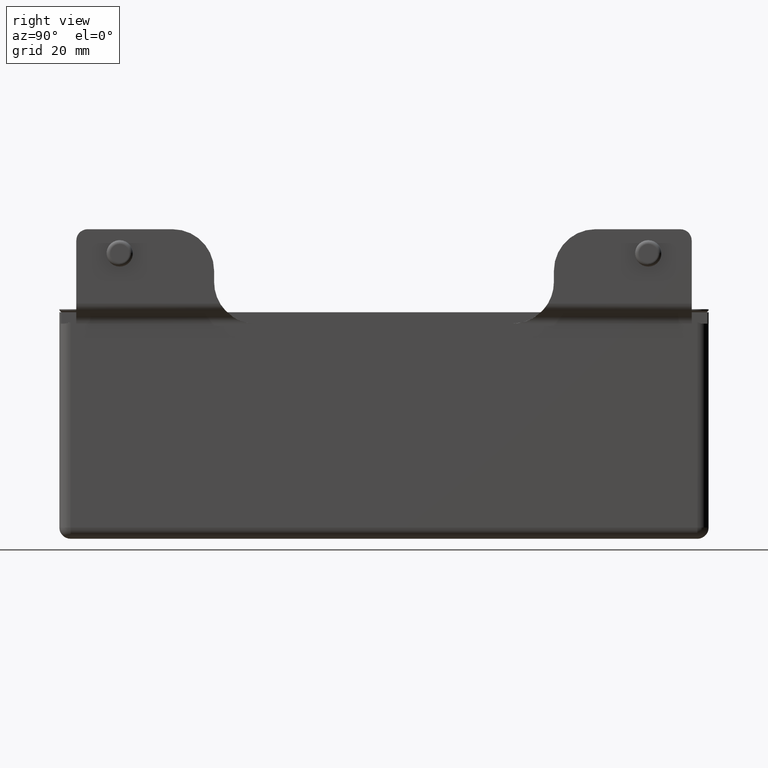
[diagram: clean part render]
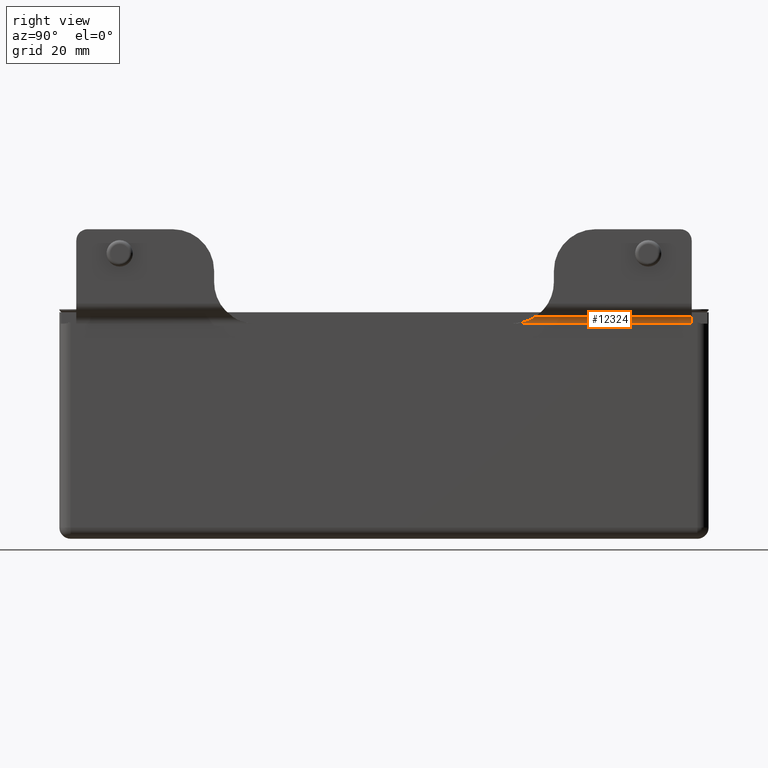
[diagram: same view with one face highlighted and labeled with its STEP entity id]
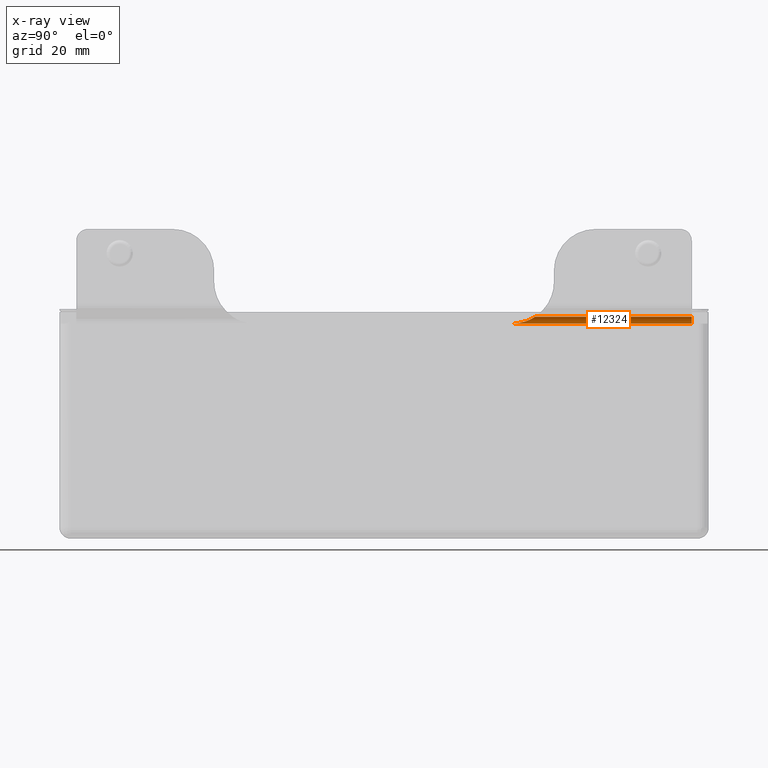
[diagram: x-ray of the same camera — body ghosted, the highlighted face saturated]
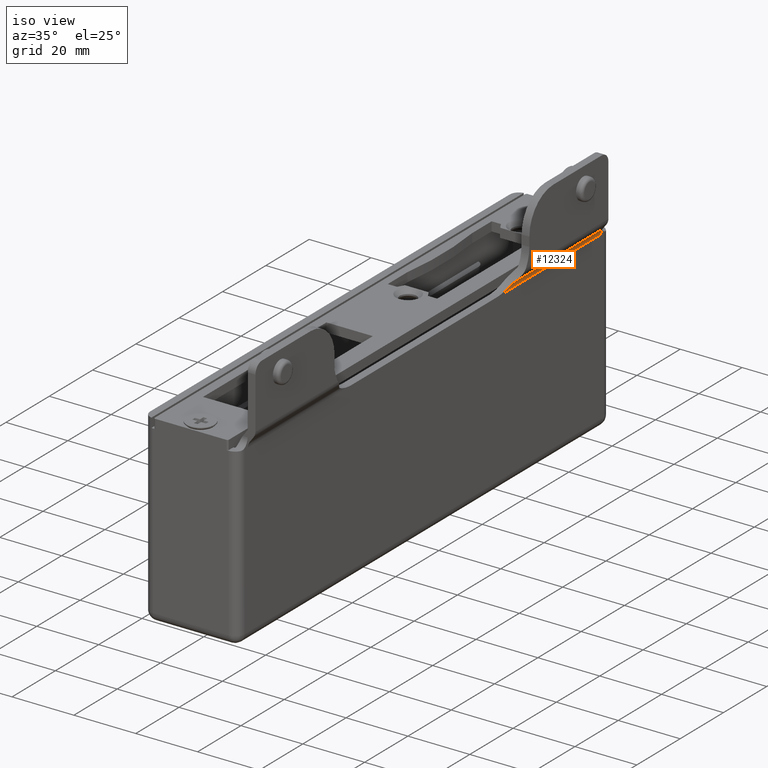
[diagram: same view with one face highlighted and labeled with its STEP entity id]
A machine part, right view. The second image highlights one B-rep face of the part: STEP entity #12324.
The next image is the same camera in x-ray: the body ghosted, the highlighted face saturated — about 0% of this face is hidden behind the body in this view.
A second angle (iso view) of the same face is appended — the face is thin or edge-on in the first view.
In plain terms, the highlighted cylindrical surface (edge-blend (fillet) strip) has radius 3 mm, axis along (-0, -1, -0).
Its self-contained STEP definition (entity closure, byte-faithful):
#1314 = EDGE_CURVE ( 'NONE', #21507, #28022, #7726, .T. ) ;
#1562 = CARTESIAN_POINT ( 'NONE',  ( 15.64314786436677984, 39.60912865268999639, 30.02419817895065179 ) ) ;
#1927 = CARTESIAN_POINT ( 'NONE',  ( 15.85000321555446767, 40.02993191405217743, 30.30000428739800000 ) ) ;
#2268 = LINE ( 'NONE', #33721, #12166 ) ;
#2629 = AXIS2_PLACEMENT_3D ( 'NONE', #22150, #13944, #24561 ) ;
#2994 = DIRECTION ( 'NONE',  ( -0.000000000000000000, -1.000000000000000000, -0.000000000000000000 ) ) ;
#3753 = CYLINDRICAL_SURFACE ( 'NONE', #2629, 2.999999999999995559 ) ;
#4674 = CARTESIAN_POINT ( 'NONE',  ( 15.36350975776696437, 38.18420068231990427, 29.32335439549510170 ) ) ;
#5971 = CARTESIAN_POINT ( 'NONE',  ( 15.85000321555446767, 81.50000000000000000, 30.30000428739800000 ) ) ;
#6571 = EDGE_CURVE ( 'NONE', #21507, #28961, #2268, .T. ) ;
#7444 = CARTESIAN_POINT ( 'NONE',  ( 15.24999999999999112, 34.54007710656026120, 28.49999999999998934 ) ) ;
#7726 = CIRCLE ( 'NONE', #21008, 2.999999999999999112 ) ;
#9133 = DIRECTION ( 'NONE',  ( 0.000000000000000000, 1.000000000000000000, -0.000000000000000000 ) ) ;
#9460 = ORIENTED_EDGE ( 'NONE', *, *, #21999, .T. ) ;
#10221 = CARTESIAN_POINT ( 'NONE',  ( 15.26244951264272665, 36.66522345779068104, 28.81443579415729417 ) ) ;
#11544 = DIRECTION ( 'NONE',  ( -0.000000000000000000, -1.000000000000000000, -0.000000000000000000 ) ) ;
#12166 = VECTOR ( 'NONE', #11544, 1000.000000000000000 ) ;
#12185 = ORIENTED_EDGE ( 'NONE', *, *, #32833, .T. ) ;
#12324 = ADVANCED_FACE ( 'NONE', ( #14526 ), #3753, .F. ) ;
#12515 = CARTESIAN_POINT ( 'NONE',  ( 15.39494329196462807, 38.43249445233059447, 29.42906643631400243 ) ) ;
#13944 = DIRECTION ( 'NONE',  ( -0.000000000000000000, -1.000000000000000000, -0.000000000000000000 ) ) ;
#14366 = VERTEX_POINT ( 'NONE', #23491 ) ;
#14526 = FACE_OUTER_BOUND ( 'NONE', #16471, .T. ) ;
#15412 = CARTESIAN_POINT ( 'NONE',  ( 15.24999999999999289, 34.00000000000000000, 28.50000000000000000 ) ) ;
#16471 = EDGE_LOOP ( 'NONE', ( #9460, #12185, #27029, #18016 ) ) ;
#17356 = CARTESIAN_POINT ( 'NONE',  ( 18.24999999999998934, 81.50000000000000000, 28.50000000000000000 ) ) ;
#18016 = ORIENTED_EDGE ( 'NONE', *, *, #1314, .T. ) ;
#18763 = VECTOR ( 'NONE', #2994, 1000.000000000000000 ) ;
#21008 = AXIS2_PLACEMENT_3D ( 'NONE', #17356, #9133, #28308 ) ;
#21207 = CARTESIAN_POINT ( 'NONE',  ( 15.31564065029590616, 37.68425831208091381, 29.13188099029153832 ) ) ;
#21507 = VERTEX_POINT ( 'NONE', #34775 ) ;
#21999 = EDGE_CURVE ( 'NONE', #28022, #14366, #26074, .T. ) ;
#22150 = CARTESIAN_POINT ( 'NONE',  ( 18.24999999999998934, 81.50000000000000000, 28.50000000000000000 ) ) ;
#23491 = CARTESIAN_POINT ( 'NONE',  ( 15.85000321555446767, 40.02993191405217743, 30.30000428739800000 ) ) ;
#23960 = CARTESIAN_POINT ( 'NONE',  ( 15.24923113368329375, 35.08048203139374976, 28.54000794637768834 ) ) ;
#24561 = DIRECTION ( 'NONE',  ( 0.000000000000000000, 0.000000000000000000, -1.000000000000000000 ) ) ;
#25026 = CARTESIAN_POINT ( 'NONE',  ( 15.85000321555446767, 81.50000000000000000, 30.30000428739800000 ) ) ;
#26074 = LINE ( 'NONE', #25026, #18763 ) ;
#26250 = CARTESIAN_POINT ( 'NONE',  ( 15.25547342934582673, 36.14380240148678070, 28.69754757015757463 ) ) ;
#26736 = CARTESIAN_POINT ( 'NONE',  ( 15.29898601579747108, 37.43149297795793728, 29.04552581133265576 ) ) ;
#27029 = ORIENTED_EDGE ( 'NONE', *, *, #6571, .F. ) ;
#28022 = VERTEX_POINT ( 'NONE', #5971 ) ;
#28308 = DIRECTION ( 'NONE',  ( 0.000000000000000000, 0.000000000000000000, 1.000000000000000000 ) ) ;
#28544 = CARTESIAN_POINT ( 'NONE',  ( 15.24999999999999289, 34.00000000000000000, 28.50000000000000000 ) ) ;
#28961 = VERTEX_POINT ( 'NONE', #28544 ) ;
#30250 = B_SPLINE_CURVE_WITH_KNOTS ( 'NONE', 3,
 ( #1927, #1562, #31887, #12515, #4674, #21207, #26736, #10221, #26250, #23960, #7444, #15412 ),
 .UNSPECIFIED., .F., .F.,
 ( 4, 2, 2, 2, 2, 4 ),
 ( 0.000000000000000000, 0.001607478454423272090, 0.002411217681634908027, 0.003214956908846544181, 0.004822435363269816054, 0.006429913817693088361 ),
 .UNSPECIFIED. ) ;
#31887 = CARTESIAN_POINT ( 'NONE',  ( 15.52047841977284115, 39.15466413650028699, 29.76797671106609400 ) ) ;
#32833 = EDGE_CURVE ( 'NONE', #14366, #28961, #30250, .T. ) ;
#33721 = CARTESIAN_POINT ( 'NONE',  ( 15.24999999999999822, 81.50000000000000000, 28.50000000000000000 ) ) ;
#34775 = CARTESIAN_POINT ( 'NONE',  ( 15.24999999999998757, 81.50000000000000000, 28.50000000000000000 ) ) ;